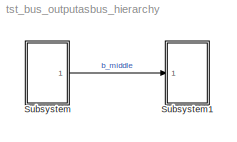
MODEL tst_bus_outputasbus_hierarchy
KIND model
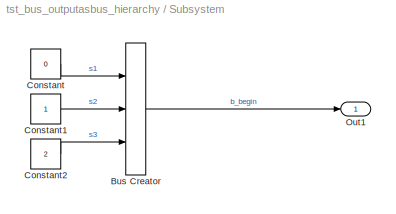
BLOCK [SubSystem] Subsystem
  FunctionWithSeparateData = off
  MaskHideContents = off
  MinAlgLoopOccurrences = off
  Opaque = off
  Ports = [0, 1]
  PropExecContextOutsideSubsystem = off
  RTWSystemCode = Auto
  RequestExecContextInheritance = off
  SID = 30
BLOCK [BusCreator] Subsystem/Bus Creator
  DisplayOption = bar
  Inputs = 3
  Ports = [3, 1]
  SID = 1
BLOCK [Constant] Subsystem/Constant
  SID = 3
  Value = 0
BLOCK [Constant] Subsystem/Constant1
  SID = 7
BLOCK [Constant] Subsystem/Constant2
  SID = 4
  Value = 2
BLOCK [Outport] Subsystem/Out1
  IconDisplay = Port number
  SID = 31
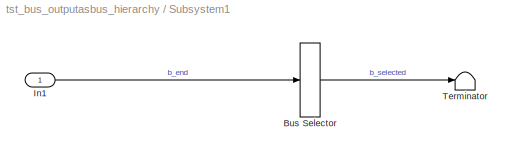
BLOCK [SubSystem] Subsystem1
  FunctionWithSeparateData = off
  MaskHideContents = off
  MinAlgLoopOccurrences = off
  Opaque = off
  Ports = [1]
  PropExecContextOutsideSubsystem = off
  RTWSystemCode = Auto
  RequestExecContextInheritance = off
  SID = 32
BLOCK [BusSelector] Subsystem1/Bus Selector
  OutputAsBus = on
  OutputSignals = s2,s3
  Ports = [1, 1]
  SID = 2
BLOCK [Inport] Subsystem1/In1
  IconDisplay = Port number
  SID = 33
BLOCK [Terminator] Subsystem1/Terminator
  SID = 5
LINE Subsystem/Bus Creator:1 -> Subsystem/Out1:1
LINE Subsystem/Constant1:1 -> Subsystem/Bus Creator:2
LINE Subsystem/Constant2:1 -> Subsystem/Bus Creator:3
LINE Subsystem/Constant:1 -> Subsystem/Bus Creator:1
LINE Subsystem1/Bus Selector:1 -> Subsystem1/Terminator:1
LINE Subsystem1/In1:1 -> Subsystem1/Bus Selector:1
LINE Subsystem:1 -> Subsystem1:1
